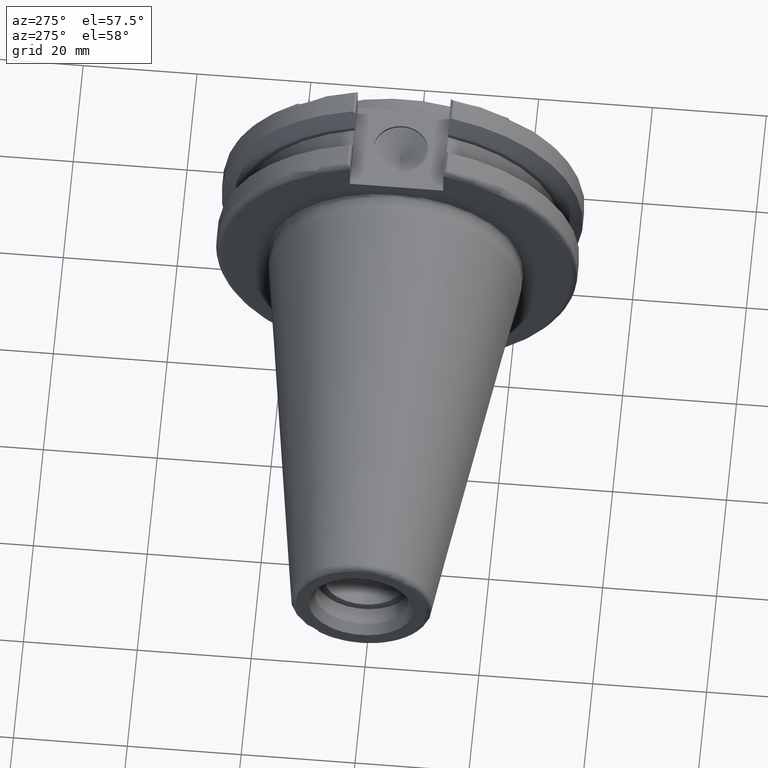
[diagram: clean part render]
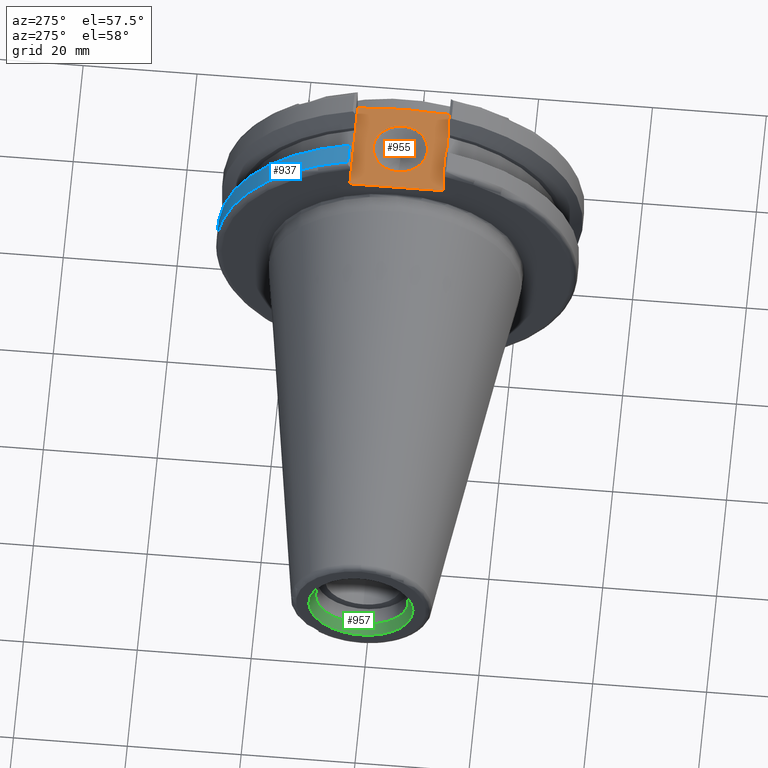
[diagram: same view with three faces highlighted in distinct colors, each labeled with its STEP entity id]
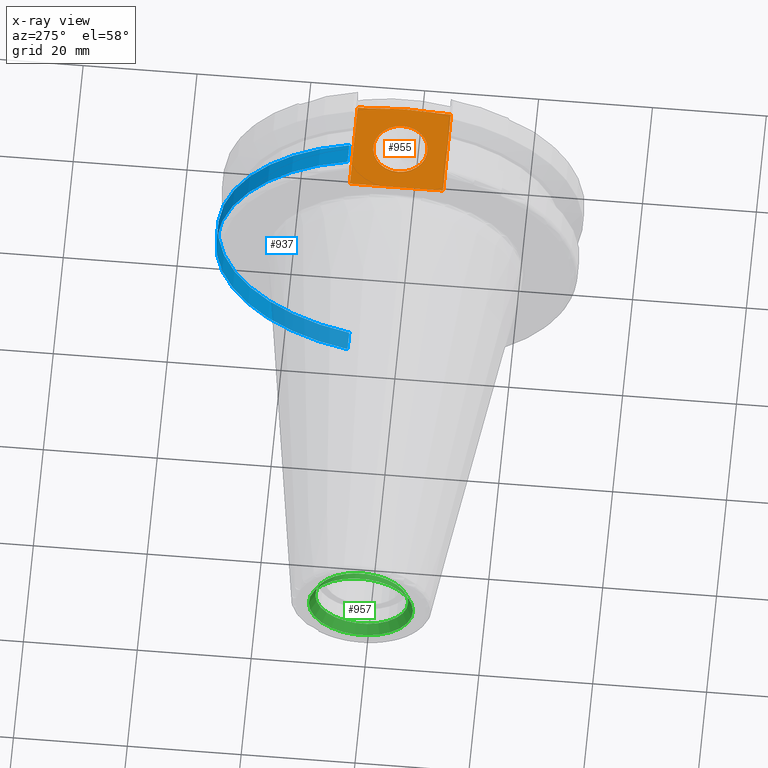
[diagram: x-ray of the same camera — body ghosted, the three highlighted faces saturated]
A machine part, auxiliary view with three faces highlighted in distinct colors.
The next image is the same camera in x-ray (body ghosted, the three faces saturated) — at least one of them is partly hidden behind the body in this view.
Their STEP definitions:

[orange] entity #955 — the highlighted planar face has unit normal (0, 0, 1).
#18=FACE_BOUND('',#301,.T.);
#50=LINE('',#1464,#106);
#62=LINE('',#1554,#118);
#63=LINE('',#1591,#119);
#76=LINE('',#1668,#132);
#93=LINE('',#1807,#149);
#106=VECTOR('',#1118,10.);
#118=VECTOR('',#1178,10.);
#119=VECTOR('',#1185,10.);
#132=VECTOR('',#1208,10.);
#149=VECTOR('',#1323,10.);
#193=PLANE('',#1075);
#244=FACE_OUTER_BOUND('',#300,.T.);
#300=EDGE_LOOP('',(#870,#871,#872,#873,#874,#875));
#301=EDGE_LOOP('',(#876));
#343=CIRCLE('',#1058,4.7625);
#358=B_SPLINE_CURVE_WITH_KNOTS('',3,(#1437,#1438,#1439,#1440,#1441,#1442,
#1443,#1444,#1445,#1446),.UNSPECIFIED.,.F.,.F.,(4,2,2,2,4),(1.28229186042809,
1.47392183654147,1.862003561099,2.25008528565653,2.44171526176991),
 .UNSPECIFIED.);
#396=VERTEX_POINT('',#1435);
#397=VERTEX_POINT('',#1436);
#400=VERTEX_POINT('',#1463);
#419=VERTEX_POINT('',#1552);
#424=VERTEX_POINT('',#1590);
#443=VERTEX_POINT('',#1667);
#463=VERTEX_POINT('',#1774);
#494=EDGE_CURVE('',#396,#397,#358,.F.);
#499=EDGE_CURVE('',#396,#400,#50,.T.);
#529=EDGE_CURVE('',#419,#397,#62,.T.);
#535=EDGE_CURVE('',#424,#400,#63,.T.);
#558=EDGE_CURVE('',#424,#443,#76,.T.);
#594=EDGE_CURVE('',#463,#463,#343,.T.);
#608=EDGE_CURVE('',#419,#443,#93,.T.);
#870=ORIENTED_EDGE('',*,*,#529,.F.);
#871=ORIENTED_EDGE('',*,*,#608,.T.);
#872=ORIENTED_EDGE('',*,*,#558,.F.);
#873=ORIENTED_EDGE('',*,*,#535,.T.);
#874=ORIENTED_EDGE('',*,*,#499,.F.);
#875=ORIENTED_EDGE('',*,*,#494,.T.);
#876=ORIENTED_EDGE('',*,*,#594,.T.);
#955=ADVANCED_FACE('',(#244,#18),#193,.T.);
#1058=AXIS2_PLACEMENT_3D('',#1775,#1283,#1284);
#1075=AXIS2_PLACEMENT_3D('',#1806,#1321,#1322);
#1118=DIRECTION('',(0.,-1.,0.));
#1178=DIRECTION('',(0.,-1.,0.));
#1185=DIRECTION('',(1.,-1.31581988103722E-16,0.));
#1208=DIRECTION('',(0.,1.,0.));
#1283=DIRECTION('center_axis',(0.,0.,-1.));
#1284=DIRECTION('ref_axis',(1.,0.,0.));
#1321=DIRECTION('center_axis',(0.,0.,1.));
#1322=DIRECTION('ref_axis',(1.,0.,0.));
#1323=DIRECTION('',(-1.,0.,0.));
#1435=CARTESIAN_POINT('',(19.05,-6.16948133962654,25.));
#1436=CARTESIAN_POINT('',(19.05,6.16948133962654,25.));
#1437=CARTESIAN_POINT('Ctrl Pts',(19.05,6.16948133962654,25.));
#1438=CARTESIAN_POINT('Ctrl Pts',(19.05,5.53071475258195,25.));
#1439=CARTESIAN_POINT('Ctrl Pts',(19.0917093675371,4.76533047486056,25.));
#1440=CARTESIAN_POINT('Ctrl Pts',(19.2334466867335,2.83816328553263,25.));
#1441=CARTESIAN_POINT('Ctrl Pts',(19.3885621722339,1.29360574852511,25.));
#1442=CARTESIAN_POINT('Ctrl Pts',(19.3885621722339,-1.29360574852511,25.));
#1443=CARTESIAN_POINT('Ctrl Pts',(19.2334466867335,-2.83816328553263,25.));
#1444=CARTESIAN_POINT('Ctrl Pts',(19.0917093675371,-4.76533047486056,25.));
#1445=CARTESIAN_POINT('Ctrl Pts',(19.05,-5.53071475258195,25.));
#1446=CARTESIAN_POINT('Ctrl Pts',(19.05,-6.16948133962654,25.));
#1463=CARTESIAN_POINT('',(19.05,-8.19,25.));
#1464=CARTESIAN_POINT('',(19.05,0.,25.));
#1552=CARTESIAN_POINT('',(19.05,8.19,25.));
#1554=CARTESIAN_POINT('',(19.05,0.,25.));
#1590=CARTESIAN_POINT('',(3.175,-8.19,25.));
#1591=CARTESIAN_POINT('',(3.175,-8.19,25.));
#1667=CARTESIAN_POINT('',(3.175,8.19,25.));
#1668=CARTESIAN_POINT('',(3.175,15.875,25.));
#1774=CARTESIAN_POINT('',(6.3716,-5.83238038093927E-16,25.));
#1775=CARTESIAN_POINT('Origin',(11.1341,0.,25.));
#1806=CARTESIAN_POINT('Origin',(15.7075,0.,25.));
#1807=CARTESIAN_POINT('',(20.05,8.19,25.));

[blue] entity #937 — the highlighted cylindrical surface (partial cylindrical patch) has radius 31.75 mm, axis along (1, 0, 0).
#25=CYLINDRICAL_SURFACE('',#1044,31.75);
#79=LINE('',#1707,#135);
#84=LINE('',#1742,#140);
#135=VECTOR('',#1221,10.);
#140=VECTOR('',#1252,10.);
#226=FACE_OUTER_BOUND('',#282,.T.);
#282=EDGE_LOOP('',(#791,#792,#793,#794));
#331=CIRCLE('',#1030,31.75);
#338=CIRCLE('',#1045,31.75);
#447=VERTEX_POINT('',#1680);
#448=VERTEX_POINT('',#1689);
#449=VERTEX_POINT('',#1706);
#457=VERTEX_POINT('',#1741);
#564=EDGE_CURVE('',#447,#448,#331,.T.);
#567=EDGE_CURVE('',#448,#449,#79,.T.);
#581=EDGE_CURVE('',#457,#447,#84,.T.);
#582=EDGE_CURVE('',#449,#457,#338,.T.);
#791=ORIENTED_EDGE('',*,*,#564,.F.);
#792=ORIENTED_EDGE('',*,*,#581,.F.);
#793=ORIENTED_EDGE('',*,*,#582,.F.);
#794=ORIENTED_EDGE('',*,*,#567,.F.);
#937=ADVANCED_FACE('',(#226),#25,.T.);
#1030=AXIS2_PLACEMENT_3D('',#1690,#1217,#1218);
#1044=AXIS2_PLACEMENT_3D('',#1740,#1250,#1251);
#1045=AXIS2_PLACEMENT_3D('',#1743,#1253,#1254);
#1217=DIRECTION('center_axis',(-1.,0.,0.));
#1218=DIRECTION('ref_axis',(0.,1.,1.60812264967664E-16));
#1221=DIRECTION('',(1.,0.,0.));
#1250=DIRECTION('center_axis',(1.,0.,0.));
#1251=DIRECTION('ref_axis',(0.,1.,0.));
#1252=DIRECTION('',(-1.,0.,0.));
#1253=DIRECTION('center_axis',(1.,0.,0.));
#1254=DIRECTION('ref_axis',(0.,0.,-1.));
#1680=CARTESIAN_POINT('',(4.175,8.67204822802685,30.5427254764662));
#1689=CARTESIAN_POINT('',(4.175,8.67204822802685,-30.5427254764662));
#1690=CARTESIAN_POINT('Origin',(4.175,0.,0.));
#1706=CARTESIAN_POINT('',(7.60793323092436,8.67204822802685,-30.5427254764662));
#1707=CARTESIAN_POINT('',(5.39146661546217,8.67204822802685,-30.5427254764662));
#1740=CARTESIAN_POINT('Origin',(5.39146661546217,0.,0.));
#1741=CARTESIAN_POINT('',(7.60793323092436,8.67204822802685,30.5427254764662));
#1742=CARTESIAN_POINT('',(5.39146661546217,8.67204822802685,30.5427254764662));
#1743=CARTESIAN_POINT('Origin',(7.60793323092436,0.,0.));

[green] entity #957 — the highlighted conical surface has half-angle 30 deg.
#39=CONICAL_SURFACE('',#1077,8.65,0.523598775598298);
#94=LINE('',#1812,#150);
#150=VECTOR('',#1330,8.65);
#246=FACE_OUTER_BOUND('',#303,.T.);
#303=EDGE_LOOP('',(#889,#890,#891,#892));
#336=CIRCLE('',#1038,9.15);
#351=CIRCLE('',#1078,8.14999999999999);
#453=VERTEX_POINT('',#1720);
#468=VERTEX_POINT('',#1810);
#573=EDGE_CURVE('',#453,#453,#336,.T.);
#609=EDGE_CURVE('',#468,#468,#351,.T.);
#610=EDGE_CURVE('',#468,#453,#94,.T.);
#889=ORIENTED_EDGE('',*,*,#609,.T.);
#890=ORIENTED_EDGE('',*,*,#610,.T.);
#891=ORIENTED_EDGE('',*,*,#573,.F.);
#892=ORIENTED_EDGE('',*,*,#610,.F.);
#957=ADVANCED_FACE('',(#246),#39,.F.);
#1038=AXIS2_PLACEMENT_3D('',#1721,#1234,#1235);
#1077=AXIS2_PLACEMENT_3D('',#1809,#1326,#1327);
#1078=AXIS2_PLACEMENT_3D('',#1811,#1328,#1329);
#1234=DIRECTION('center_axis',(1.,0.,0.));
#1235=DIRECTION('ref_axis',(0.,0.,-1.));
#1326=DIRECTION('center_axis',(-1.,0.,0.));
#1327=DIRECTION('ref_axis',(0.,1.,0.));
#1328=DIRECTION('center_axis',(1.,0.,0.));
#1329=DIRECTION('ref_axis',(0.,0.,-1.));
#1330=DIRECTION('',(-0.866025403784439,-0.5,-6.12323399573676E-17));
#1720=CARTESIAN_POINT('',(-68.25,-9.15,-1.12055182121983E-15));
#1721=CARTESIAN_POINT('Origin',(-68.25,0.,0.));
#1809=CARTESIAN_POINT('Origin',(-67.3839745962156,0.,0.));
#1810=CARTESIAN_POINT('',(-66.5179491924311,-8.14999999999999,-9.98087141305092E-16));
#1811=CARTESIAN_POINT('Origin',(-66.5179491924311,0.,0.));
#1812=CARTESIAN_POINT('',(-67.3839745962156,-8.65,-1.05931948126246E-15));